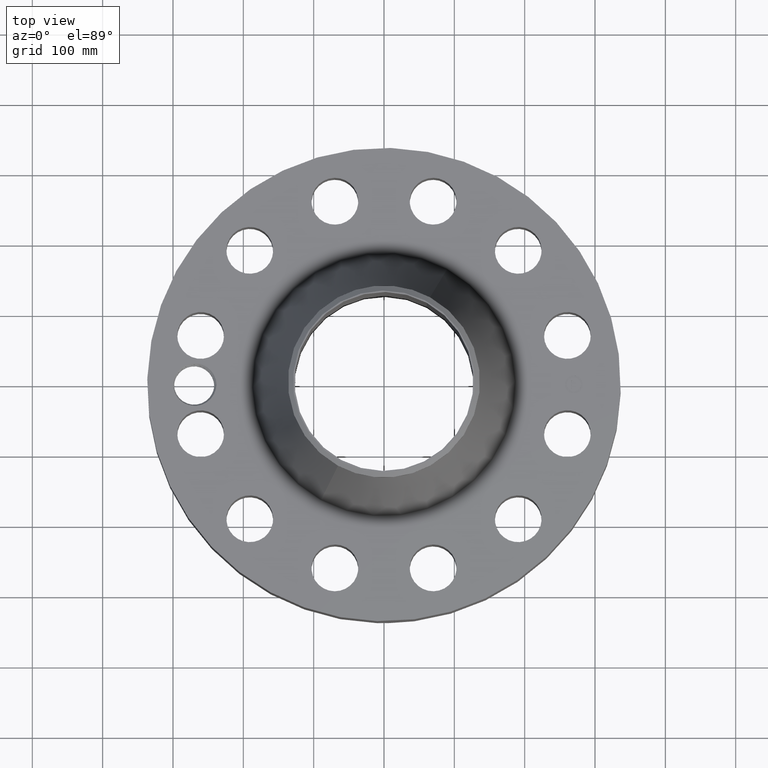
[diagram: clean part render]
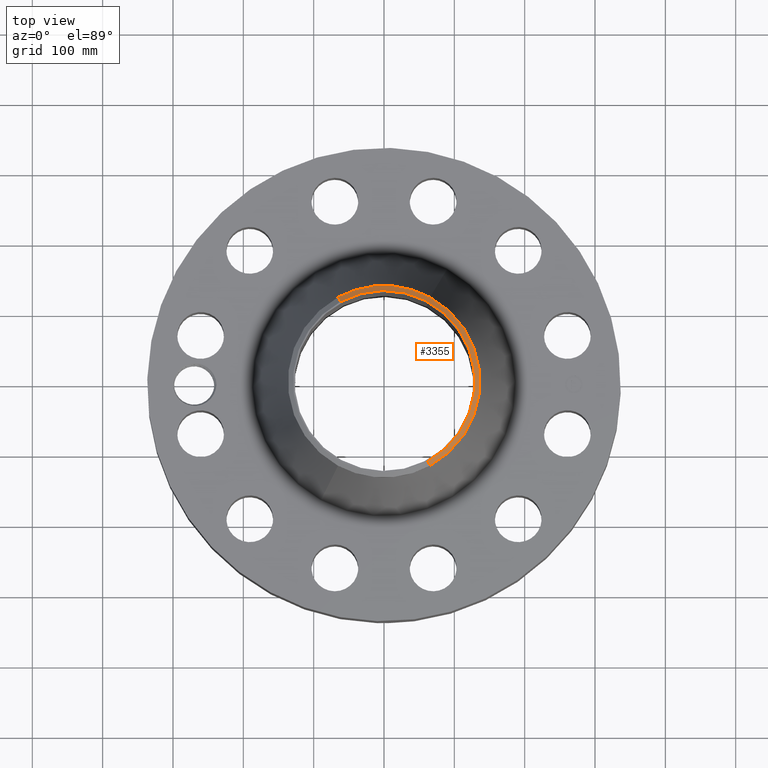
[diagram: same view with one face highlighted and labeled with its STEP entity id]
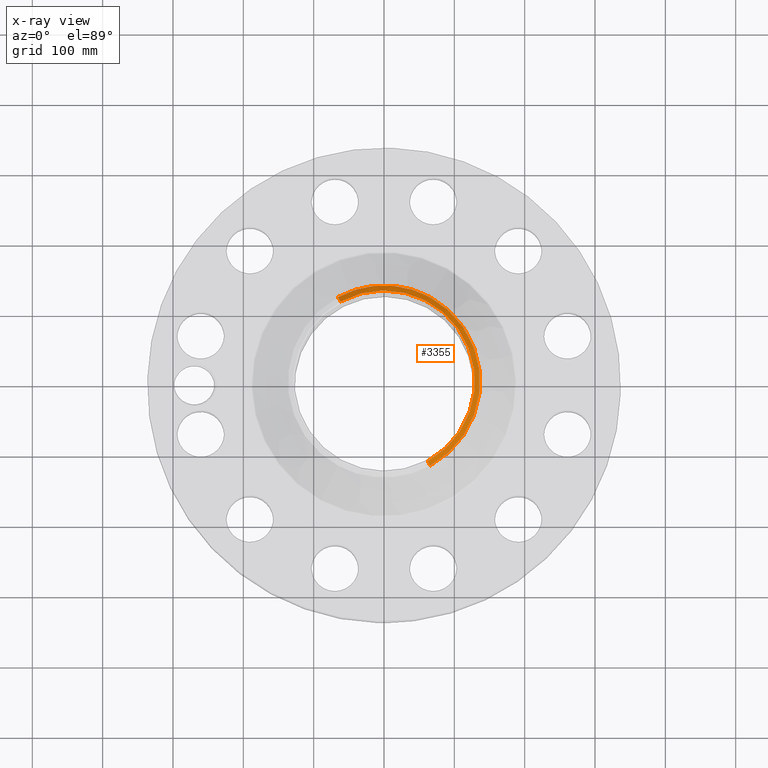
[diagram: x-ray of the same camera — body ghosted, the highlighted face saturated]
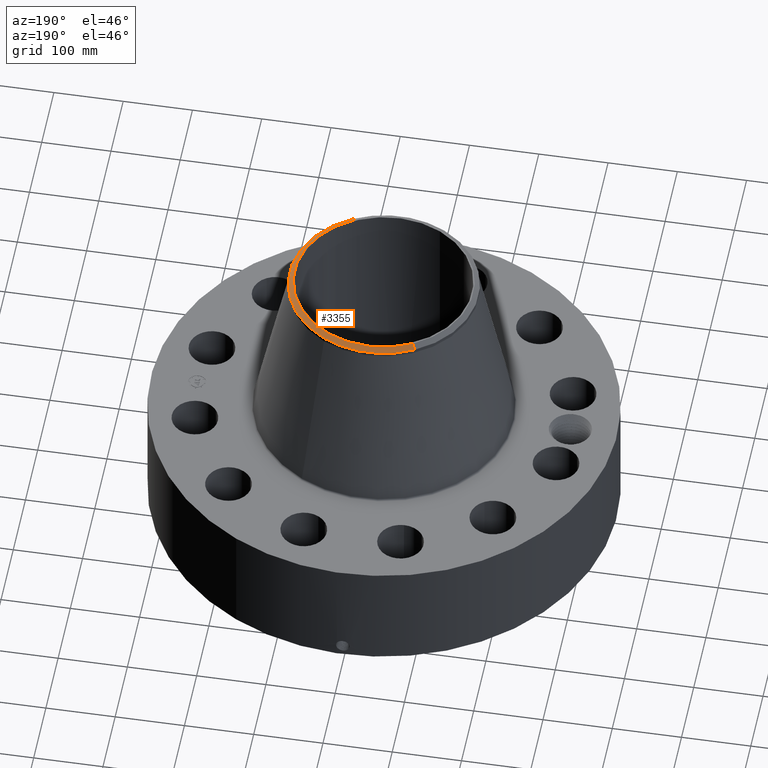
[diagram: same view with one face highlighted and labeled with its STEP entity id]
A machine part, top view. The second image highlights one B-rep face of the part: STEP entity #3355.
The next image is the same camera in x-ray: the body ghosted, the highlighted face saturated — about 0% of this face is hidden behind the body in this view.
A second angle (auxiliary view) of the same face is appended — the face is thin or edge-on in the first view.
In plain terms, the highlighted conical surface has half-angle 52.5 deg.
Its self-contained STEP definition (entity closure, byte-faithful):
#2437=AXIS2_PLACEMENT_3D('Circle Axis2P3D',#2435,#2436,$) ;
#3300=AXIS2_PLACEMENT_3D('Cone Axis2P3D',#3297,#3298,#3299) ;
#3338=AXIS2_PLACEMENT_3D('Circle Axis2P3D',#3336,#3337,$) ;
#3345=AXIS2_PLACEMENT_3D('Circle Axis2P3D',#3343,#3344,$) ;
#2435=CARTESIAN_POINT('Axis2P3D Location',(0.,0.,16.7500000001)) ;
#2439=CARTESIAN_POINT('Vertex',(2.43967199083,-4.46578962421,16.7500000001)) ;
#2441=CARTESIAN_POINT('Vertex',(-2.43967199083,4.46578962421,16.7500000001)) ;
#3297=CARTESIAN_POINT('Axis2P3D Location',(0.,0.,16.7500000001)) ;
#3302=CARTESIAN_POINT('Line Origine',(2.50829213042,-4.5913979472,16.6401725487)) ;
#3306=CARTESIAN_POINT('Vertex',(2.57691227001,-4.71700627018,16.5303450973)) ;
#3309=CARTESIAN_POINT('Line Origine',(-2.50829213042,4.5913979472,16.6401725487)) ;
#3313=CARTESIAN_POINT('Vertex',(-2.57691227001,4.71700627018,16.5303450973)) ;
#3336=CARTESIAN_POINT('Axis2P3D Location',(0.,0.,16.5303450973)) ;
#3340=CARTESIAN_POINT('Vertex',(2.57691227001,4.71700627018,16.5303450973)) ;
#3343=CARTESIAN_POINT('Axis2P3D Location',(0.,0.,16.5303450973)) ;
#2436=DIRECTION('Axis2P3D Direction',(0.,0.,-0.0393700787402)) ;
#3298=DIRECTION('Axis2P3D Direction',(-0.,-0.,-0.0393700787402)) ;
#3299=DIRECTION('Axis2P3D XDirection',(-0.0188750212049,0.0345504945626,0.)) ;
#3303=DIRECTION('Vector Direction',(0.014974561121,-0.02741075027,-0.023966985394)) ;
#3310=DIRECTION('Vector Direction',(-0.014974561121,0.02741075027,-0.023966985394)) ;
#3337=DIRECTION('Axis2P3D Direction',(0.,0.,-0.0393700787402)) ;
#3344=DIRECTION('Axis2P3D Direction',(0.,0.,-0.0393700787402)) ;
#3304=VECTOR('Line Direction',#3303,0.0393700787402) ;
#3311=VECTOR('Line Direction',#3310,0.0393700787402) ;
#3349=ORIENTED_EDGE('',*,*,#3315,.F.) ;
#3350=ORIENTED_EDGE('',*,*,#2443,.F.) ;
#3351=ORIENTED_EDGE('',*,*,#3308,.T.) ;
#3352=ORIENTED_EDGE('',*,*,#3342,.T.) ;
#3353=ORIENTED_EDGE('',*,*,#3347,.F.) ;
#3355=ADVANCED_FACE('PartBody',(#3354),#3301,.T.) ;
#2438=CIRCLE('generated circle',#2437,5.0887401575) ;
#3339=CIRCLE('generated circle',#3338,5.37500000002) ;
#3346=CIRCLE('generated circle',#3345,5.37500000002) ;
#3301=CONICAL_SURFACE('Cone',#3300,5.0887401575,0.916297857297) ;
#2443=EDGE_CURVE('',#2440,#2442,#2438,.F.) ;
#3308=EDGE_CURVE('',#2440,#3307,#3305,.T.) ;
#3315=EDGE_CURVE('',#2442,#3314,#3312,.T.) ;
#3342=EDGE_CURVE('',#3307,#3341,#3339,.F.) ;
#3347=EDGE_CURVE('',#3314,#3341,#3346,.T.) ;
#3348=EDGE_LOOP('',(#3349,#3350,#3351,#3352,#3353)) ;
#3354=FACE_OUTER_BOUND('',#3348,.T.) ;
#3305=LINE('Line',#3302,#3304) ;
#3312=LINE('Line',#3309,#3311) ;
#2440=VERTEX_POINT('',#2439) ;
#2442=VERTEX_POINT('',#2441) ;
#3307=VERTEX_POINT('',#3306) ;
#3314=VERTEX_POINT('',#3313) ;
#3341=VERTEX_POINT('',#3340) ;